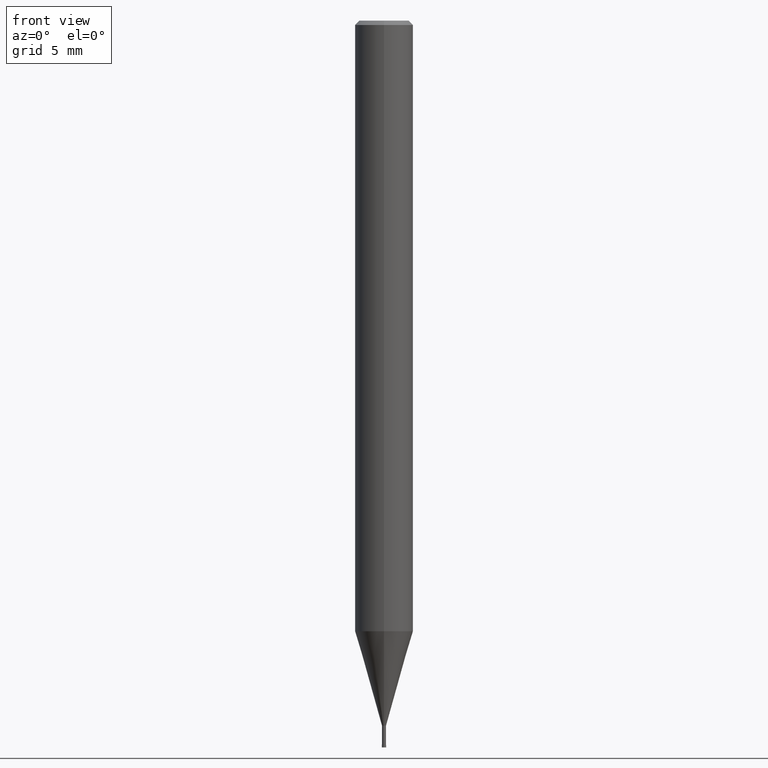
[diagram: clean part render]
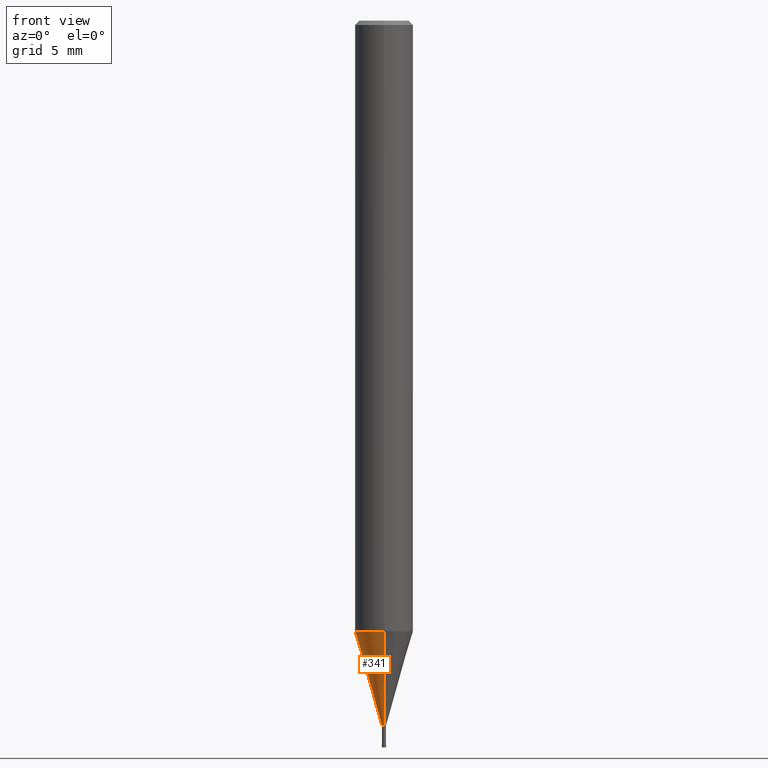
[diagram: same view with one face highlighted and labeled with its STEP entity id]
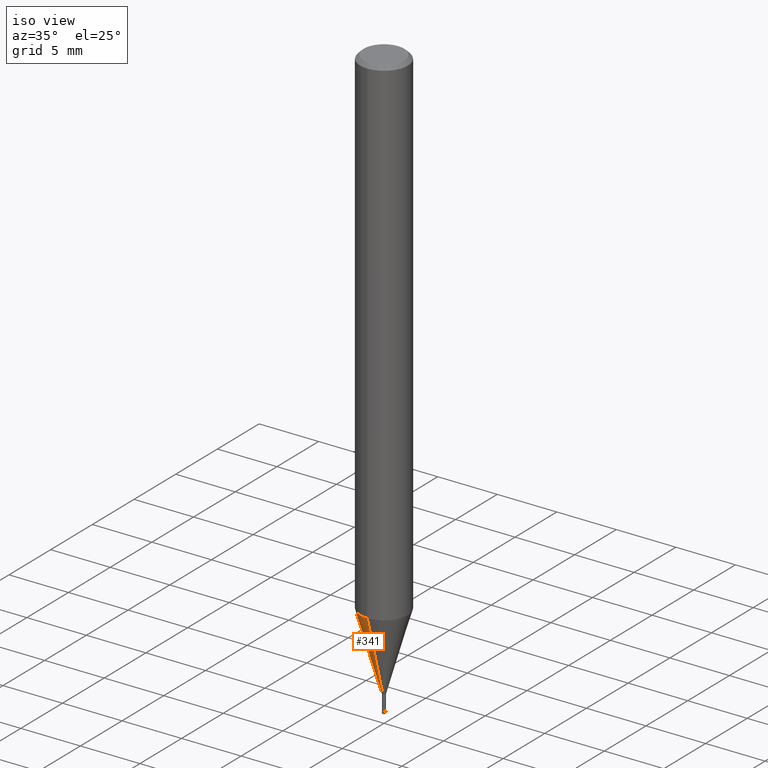
[diagram: same view with one face highlighted and labeled with its STEP entity id]
A machine part, front view. The second image highlights one B-rep face of the part: STEP entity #341.
A second angle (iso view) of the same face is appended — the face is thin or edge-on in the first view.
In plain terms, the highlighted conical surface has half-angle 15.999 deg.
Its self-contained STEP definition (entity closure, byte-faithful):
#157=EDGE_CURVE('',#269,#193,#392,.T.);
#193=VERTEX_POINT('',#436);
#207=EDGE_CURVE('',#273,#323,#451,.T.);
#235=EDGE_CURVE('',#193,#273,#484,.T.);
#269=VERTEX_POINT('',#522);
#273=VERTEX_POINT('',#526);
#323=VERTEX_POINT('',#581);
#337=EDGE_CURVE('',#269,#323,#597,.T.);
#341=ADVANCED_FACE('',(#602),#603,.T.);
#392=LINE('',#656,#657);
#436=CARTESIAN_POINT('',(2.44915147732706E-016,-1.99995,-42.003));
#451=LINE('',#727,#728);
#484=CIRCLE('',#770,1.99995);
#522=CARTESIAN_POINT('',(1.71383659217442E-017,-0.13995,-48.49));
#526=CARTESIAN_POINT('',(0.0,1.99995,-42.003));
#581=CARTESIAN_POINT('',(0.0,0.13995,-48.49));
#597=CIRCLE('',#915,0.13995);
#602=FACE_OUTER_BOUND('',#920,.T.);
#603=CONICAL_SURFACE('',#921,1.06995,0.27923596926092);
#656=CARTESIAN_POINT('',(1.31026756827225E-016,-1.06995,-45.2465));
#657=VECTOR('',#958,1.0);
#727=CARTESIAN_POINT('',(-1.31026756827225E-016,1.06995,-45.2465));
#728=VECTOR('',#1040,1.0);
#770=AXIS2_PLACEMENT_3D('',#1090,#1091,#1092);
#915=AXIS2_PLACEMENT_3D('',#1222,#1223,#1224);
#920=EDGE_LOOP('',(#1234,#1235,#1236,#1237));
#921=AXIS2_PLACEMENT_3D('',#1238,#1239,#1240);
#958=DIRECTION('',(3.37527585527933E-017,-0.275621292078393,0.961266301995986));
#1040=DIRECTION('',(3.37527585527933E-017,-0.275621292078393,-0.961266301995986));
#1090=CARTESIAN_POINT('',(0.0,0.0,-42.003));
#1091=DIRECTION('',(0.0,0.0,-1.0));
#1092=DIRECTION('',(0.0,1.0,0.0));
#1222=CARTESIAN_POINT('',(0.0,0.0,-48.49));
#1223=DIRECTION('',(0.0,0.0,-1.0));
#1224=DIRECTION('',(0.0,1.0,0.0));
#1234=ORIENTED_EDGE('',*,*,#207,.T.);
#1235=ORIENTED_EDGE('',*,*,#337,.F.);
#1236=ORIENTED_EDGE('',*,*,#157,.T.);
#1237=ORIENTED_EDGE('',*,*,#235,.T.);
#1238=CARTESIAN_POINT('',(0.0,0.0,-45.2465));
#1239=DIRECTION('',(-0.0,-0.0,1.0));
#1240=DIRECTION('',(0.0,1.0,0.0));